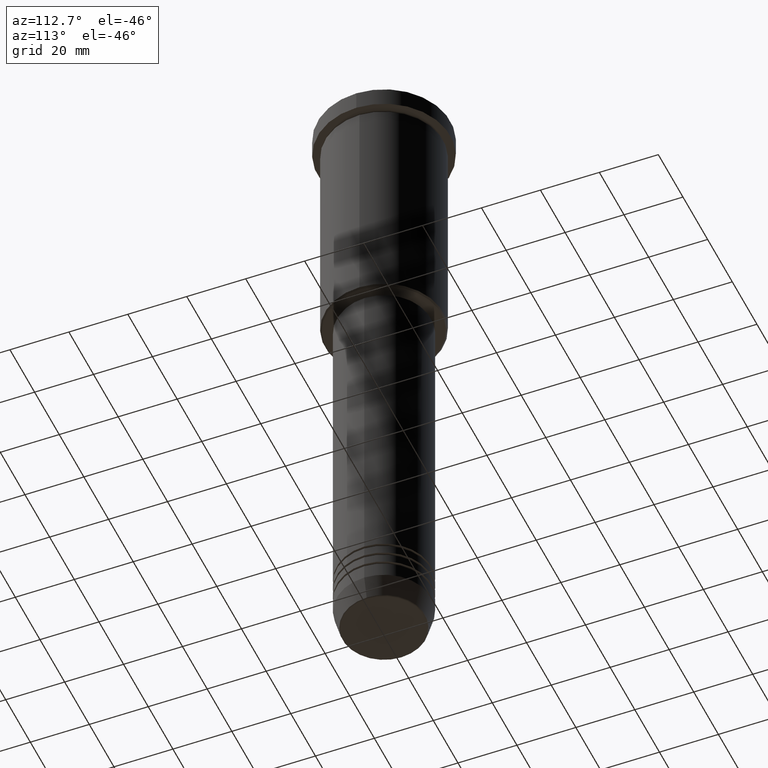
[diagram: clean part render]
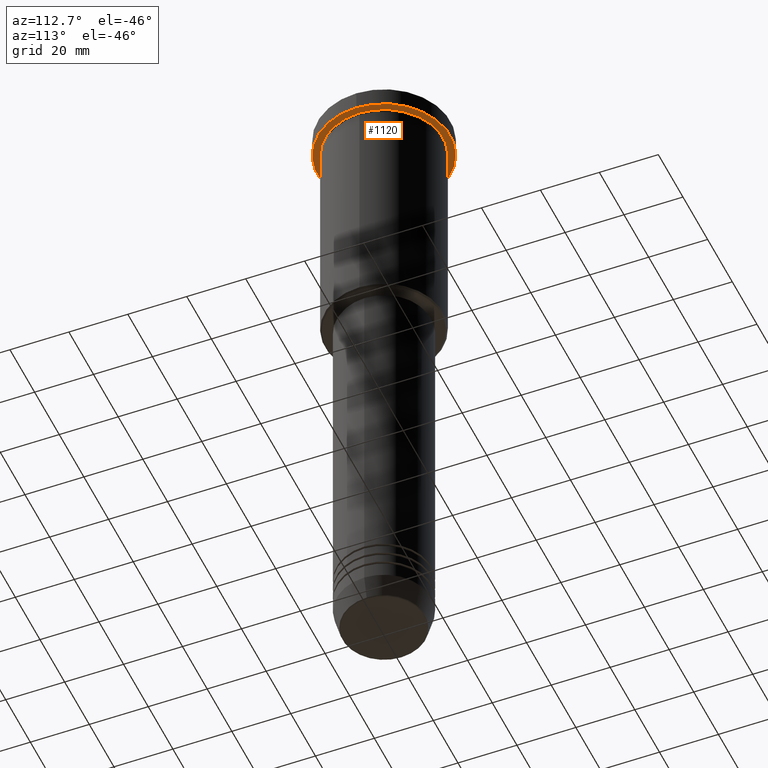
[diagram: same view with one face highlighted and labeled with its STEP entity id]
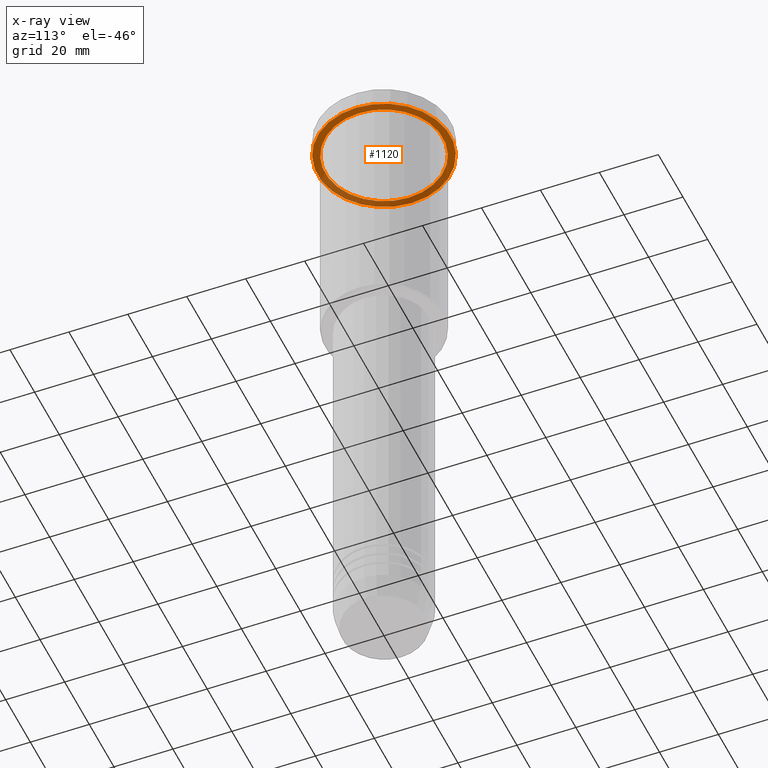
[diagram: x-ray of the same camera — body ghosted, the highlighted face saturated]
A machine part, auxiliary view. The second image highlights one B-rep face of the part: STEP entity #1120.
The next image is the same camera in x-ray: the body ghosted, the highlighted face saturated — about 36% of this face is hidden behind the body in this view.
In plain terms, the highlighted planar face has unit normal (0, 0, -1).
Its self-contained STEP definition (entity closure, byte-faithful):
#39 = FACE_OUTER_BOUND ( 'NONE', #955, .T. ) ;
#65 = ORIENTED_EDGE ( 'NONE', *, *, #1011, .F. ) ;
#100 = CARTESIAN_POINT ( 'NONE',  ( 0.000000000000000000, 0.000000000000000000, -6.999999999999995559 ) ) ;
#162 = ORIENTED_EDGE ( 'NONE', *, *, #628, .T. ) ;
#169 = CIRCLE ( 'NONE', #662, 22.50000000000000000 ) ;
#208 = VERTEX_POINT ( 'NONE', #487 ) ;
#216 = CARTESIAN_POINT ( 'NONE',  ( 22.50000000000000000, 0.000000000000000000, -6.999999999999995559 ) ) ;
#267 = DIRECTION ( 'NONE',  ( -0.000000000000000000, -0.000000000000000000, 1.000000000000000000 ) ) ;
#286 = DIRECTION ( 'NONE',  ( 1.000000000000000000, 0.000000000000000000, 0.000000000000000000 ) ) ;
#300 = AXIS2_PLACEMENT_3D ( 'NONE', #743, #559, #916 ) ;
#324 = ORIENTED_EDGE ( 'NONE', *, *, #548, .F. ) ;
#414 = AXIS2_PLACEMENT_3D ( 'NONE', #957, #942, #953 ) ;
#463 = DIRECTION ( 'NONE',  ( -1.000000000000000000, 0.000000000000000000, 0.000000000000000000 ) ) ;
#487 = CARTESIAN_POINT ( 'NONE',  ( -20.00000000000000000, 0.000000000000000000, -6.999999999999995559 ) ) ;
#524 = EDGE_CURVE ( 'NONE', #1065, #208, #547, .T. ) ;
#547 = CIRCLE ( 'NONE', #566, 20.00000000000000000 ) ;
#548 = EDGE_CURVE ( 'NONE', #716, #669, #722, .T. ) ;
#559 = DIRECTION ( 'NONE',  ( -0.000000000000000000, -0.000000000000000000, 1.000000000000000000 ) ) ;
#564 = DIRECTION ( 'NONE',  ( -0.000000000000000000, -0.000000000000000000, 1.000000000000000000 ) ) ;
#566 = AXIS2_PLACEMENT_3D ( 'NONE', #100, #564, #463 ) ;
#628 = EDGE_CURVE ( 'NONE', #208, #1065, #643, .T. ) ;
#643 = CIRCLE ( 'NONE', #414, 20.00000000000000000 ) ;
#662 = AXIS2_PLACEMENT_3D ( 'NONE', #730, #267, #286 ) ;
#669 = VERTEX_POINT ( 'NONE', #216 ) ;
#716 = VERTEX_POINT ( 'NONE', #1028 ) ;
#722 = CIRCLE ( 'NONE', #300, 22.50000000000000000 ) ;
#730 = CARTESIAN_POINT ( 'NONE',  ( 0.000000000000000000, 0.000000000000000000, -6.999999999999995559 ) ) ;
#743 = CARTESIAN_POINT ( 'NONE',  ( 0.000000000000000000, 0.000000000000000000, -6.999999999999995559 ) ) ;
#752 = CARTESIAN_POINT ( 'NONE',  ( 0.000000000000000000, 22.50000000000000000, -6.999999999999995559 ) ) ;
#758 = CARTESIAN_POINT ( 'NONE',  ( 20.00000000000000000, 2.449293598294706513E-15, -6.999999999999995559 ) ) ;
#766 = DIRECTION ( 'NONE',  ( -1.000000000000000000, 0.000000000000000000, -0.000000000000000000 ) ) ;
#825 = ORIENTED_EDGE ( 'NONE', *, *, #524, .T. ) ;
#916 = DIRECTION ( 'NONE',  ( 1.000000000000000000, 0.000000000000000000, 0.000000000000000000 ) ) ;
#936 = DIRECTION ( 'NONE',  ( 0.000000000000000000, 0.000000000000000000, -1.000000000000000000 ) ) ;
#942 = DIRECTION ( 'NONE',  ( -0.000000000000000000, -0.000000000000000000, 1.000000000000000000 ) ) ;
#944 = EDGE_LOOP ( 'NONE', ( #162, #825 ) ) ;
#953 = DIRECTION ( 'NONE',  ( -1.000000000000000000, 0.000000000000000000, 0.000000000000000000 ) ) ;
#955 = EDGE_LOOP ( 'NONE', ( #65, #324 ) ) ;
#957 = CARTESIAN_POINT ( 'NONE',  ( 0.000000000000000000, 0.000000000000000000, -6.999999999999995559 ) ) ;
#1011 = EDGE_CURVE ( 'NONE', #669, #716, #169, .T. ) ;
#1028 = CARTESIAN_POINT ( 'NONE',  ( -22.50000000000000000, 2.755455298081544778E-15, -6.999999999999995559 ) ) ;
#1056 = AXIS2_PLACEMENT_3D ( 'NONE', #752, #936, #766 ) ;
#1065 = VERTEX_POINT ( 'NONE', #758 ) ;
#1115 = FACE_BOUND ( 'NONE', #944, .T. ) ;
#1120 = ADVANCED_FACE ( 'NONE', ( #1115, #39 ), #1123, .T. ) ;
#1123 = PLANE ( 'NONE',  #1056 ) ;